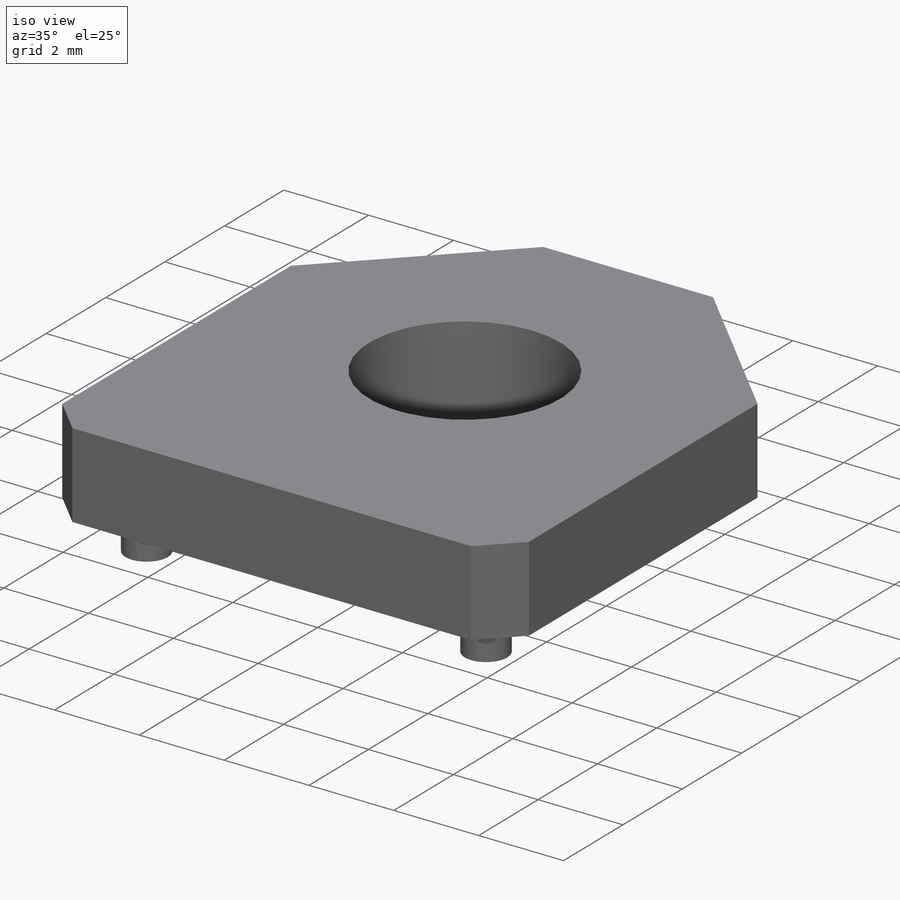
[diagram: iso view]
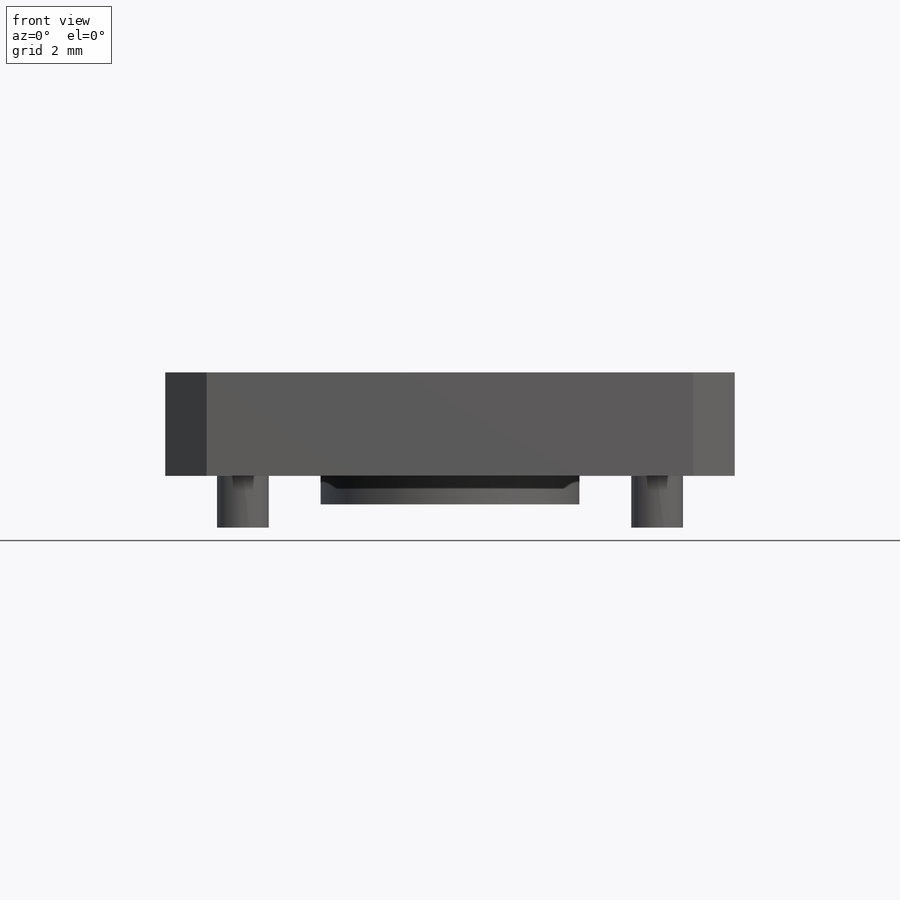
[diagram: front view]
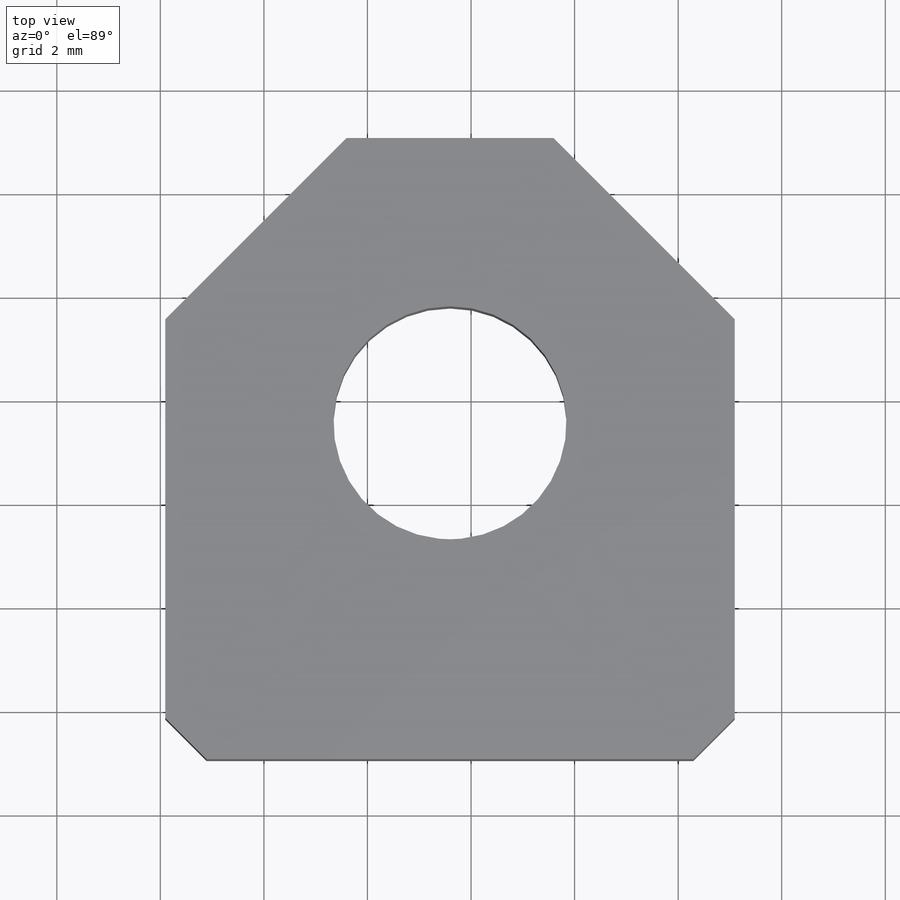
[diagram: top view]
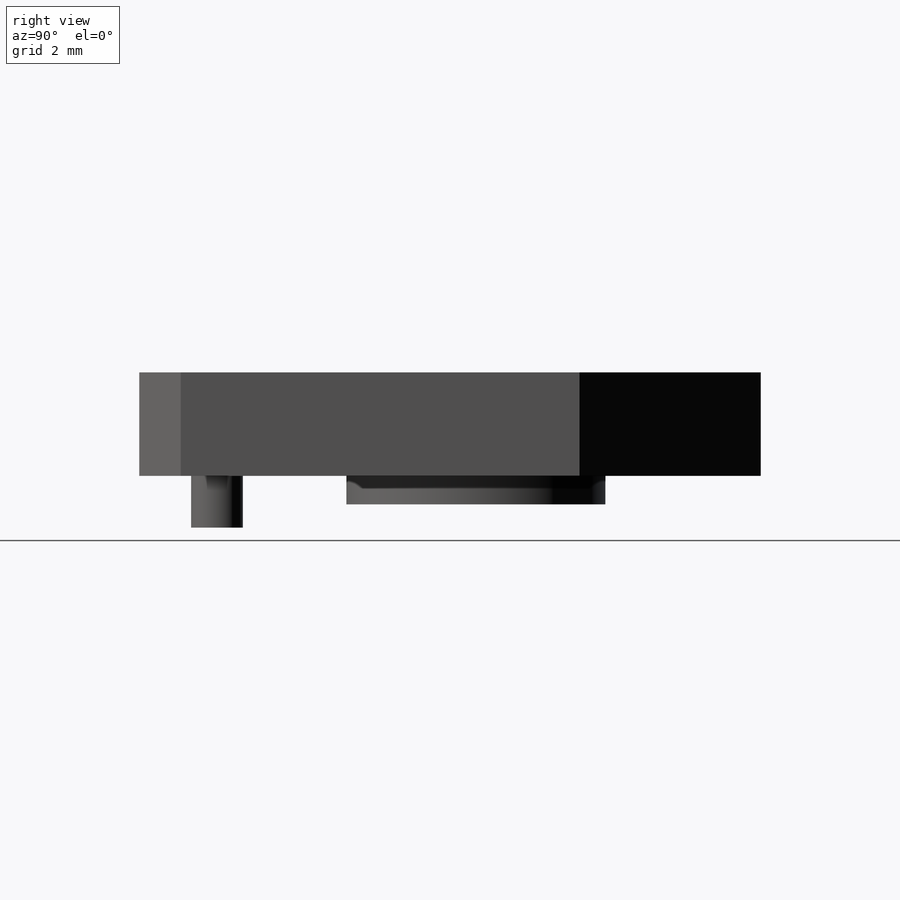
[diagram: right view]
SOLIDWORKS PART (.sldprt)
format: sldprt  version: not decoded by parser v0  size: 159,744 bytes
history: native  units: mm
features: sketch x3, extrude x3, material x1 (+16 scaffold rows collapsed)
feature tree (23):
  scaffold x16  (default folders/planes/origin — collapsed)
  material  "Material <not specified>"
  sketch  "Sketch1"  dims[c1.D8=4.5mm c1.D1=12.0mm c1.D2=~2.968607mm c2.D2=45.0deg c2.D3=~2.56383mm c3.D3=45.0deg c3.D4=5.5mm c3.D5=~5.886961mm c4.D5=90.0deg c5.D5=3.5mm c5.D6=0.8mm c5.D7=5.5mm]
  extrude  "Boss-Extrude1"  Depth=2mm
  sketch  "Sketch2"  dims[D1=0.25mm]
  extrude  "Boss-Extrude2"  Depth=0.55mm
  sketch  "Sketch3"  dims[D2=1.0mm D1=1.5mm D3=1.5mm]
  extrude  "Boss-Extrude3"  Depth=1mm
decode coverage: 6 of 6 modeling features carry decoded parameters
note: ~ marks probable driven/reference dimensions
note: suppression state not decoded; provenance and decode notes live in map.json
